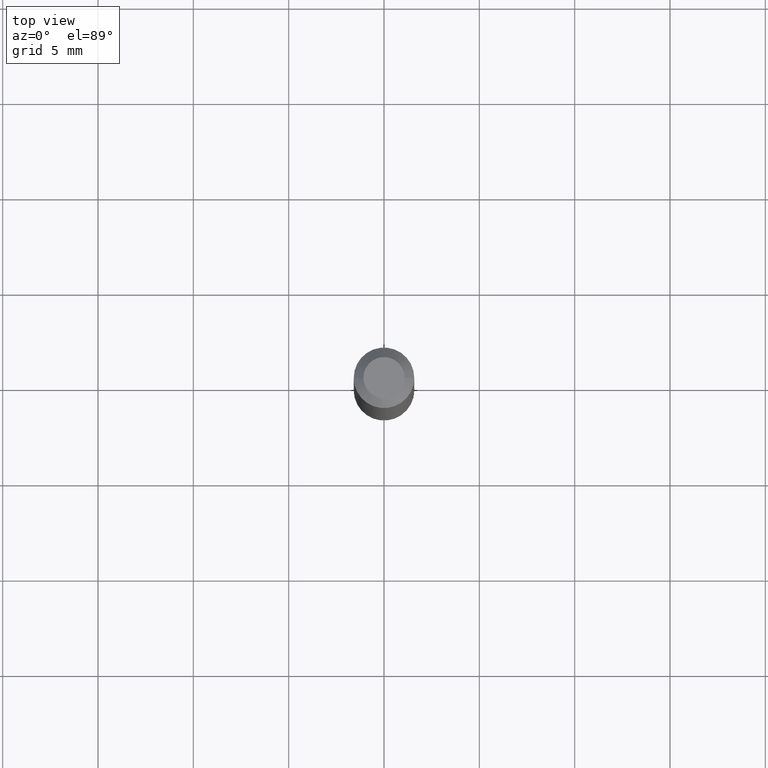
[diagram: clean part render]
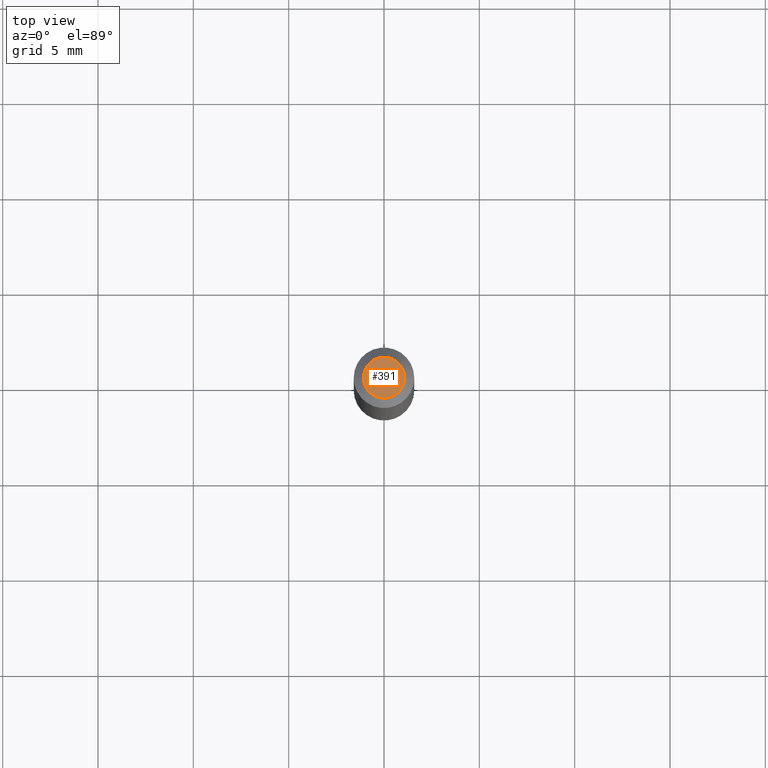
[diagram: same view with one face highlighted and labeled with its STEP entity id]
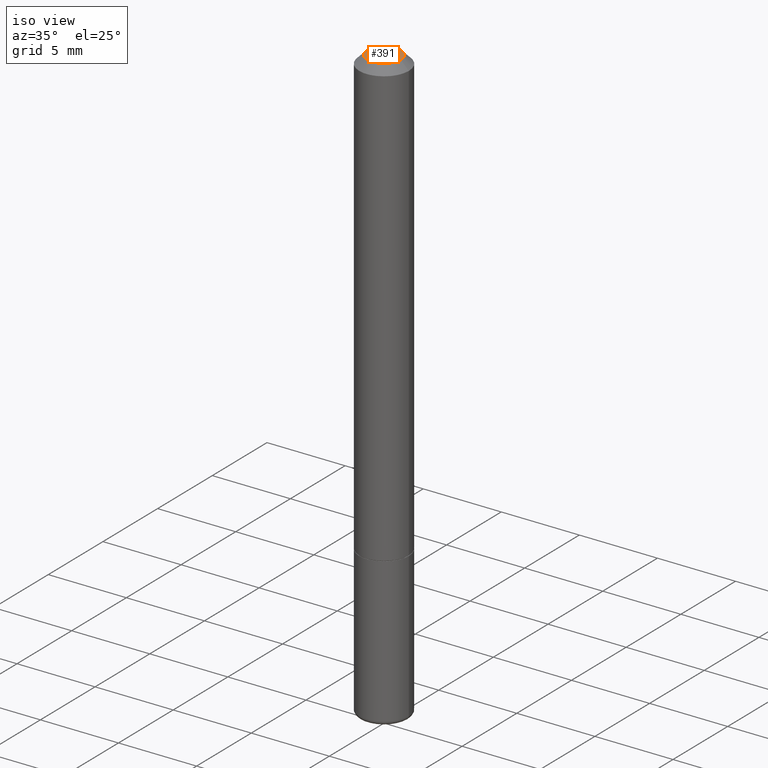
[diagram: same view with one face highlighted and labeled with its STEP entity id]
A machine part, top view. The second image highlights one B-rep face of the part: STEP entity #391.
A second angle (iso view) of the same face is appended — the face is thin or edge-on in the first view.
In plain terms, the highlighted planar face has unit normal (0, -0, -1).
Its self-contained STEP definition (entity closure, byte-faithful):
#22 = CARTESIAN_POINT ( 'NONE',  ( -0.04250000000000002387, 3.316907271900975110E-16, -2.561107494060466786E-17 ) ) ;
#51 = DIRECTION ( 'NONE',  ( 1.000000000000000000, -6.982962677686267499E-15, 4.879498284297441184E-29 ) ) ;
#73 = AXIS2_PLACEMENT_3D ( 'NONE', #156, #288, #126 ) ;
#75 = ORIENTED_EDGE ( 'NONE', *, *, #416, .T. ) ;
#84 = FACE_OUTER_BOUND ( 'NONE', #314, .T. ) ;
#90 = CIRCLE ( 'NONE', #360, 0.04250000000000002387 ) ;
#92 = DIRECTION ( 'NONE',  ( -2.445468806185136597E-29, 3.491481338843145583E-15, 1.000000000000000000 ) ) ;
#126 = DIRECTION ( 'NONE',  ( -1.000000000000000000, 6.982962677686265922E-15, -4.876176775795935793E-29 ) ) ;
#141 = CARTESIAN_POINT ( 'NONE',  ( 6.263108486011318528E-46, -8.942059022282683748E-32, -2.561107494060246767E-17 ) ) ;
#156 = CARTESIAN_POINT ( 'NONE',  ( 2.967759138016664535E-16, 0.04250000000000002387, -1.611934943711350245E-16 ) ) ;
#168 = AXIS2_PLACEMENT_3D ( 'NONE', #141, #400, #51 ) ;
#185 = CARTESIAN_POINT ( 'NONE',  ( 6.263108486011318528E-46, -8.942059022282683748E-32, -2.561107494060246767E-17 ) ) ;
#218 = CARTESIAN_POINT ( 'NONE',  ( 0.04250000000000002387, -3.950909582714371883E-16, -2.561107494060004870E-17 ) ) ;
#242 = DIRECTION ( 'NONE',  ( 1.000000000000000000, -6.982962677686267499E-15, 4.879498284297441184E-29 ) ) ;
#275 = VERTEX_POINT ( 'NONE', #22 ) ;
#287 = EDGE_CURVE ( 'NONE', #275, #396, #372, .T. ) ;
#288 = DIRECTION ( 'NONE',  ( 2.438088387897960049E-29, -3.491481338843145188E-15, -1.000000000000000000 ) ) ;
#314 = EDGE_LOOP ( 'NONE', ( #348, #75 ) ) ;
#348 = ORIENTED_EDGE ( 'NONE', *, *, #287, .T. ) ;
#353 = PLANE ( 'NONE',  #73 ) ;
#360 = AXIS2_PLACEMENT_3D ( 'NONE', #185, #92, #242 ) ;
#372 = CIRCLE ( 'NONE', #168, 0.04250000000000002387 ) ;
#391 = ADVANCED_FACE ( 'NONE', ( #84 ), #353, .F. ) ;
#396 = VERTEX_POINT ( 'NONE', #218 ) ;
#400 = DIRECTION ( 'NONE',  ( -2.445468806185136597E-29, 3.491481338843145583E-15, 1.000000000000000000 ) ) ;
#416 = EDGE_CURVE ( 'NONE', #396, #275, #90, .T. ) ;